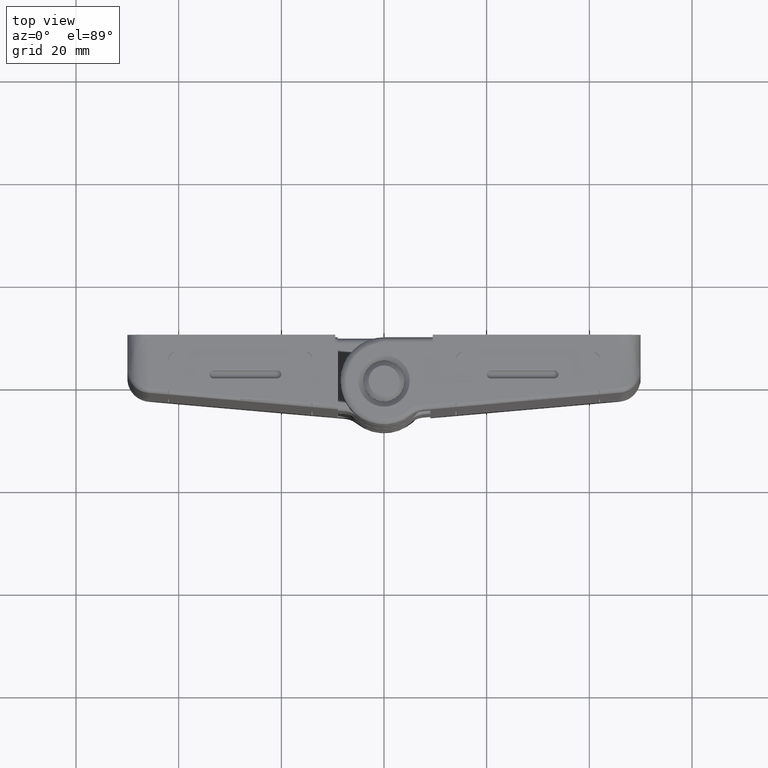
[diagram: clean part render]
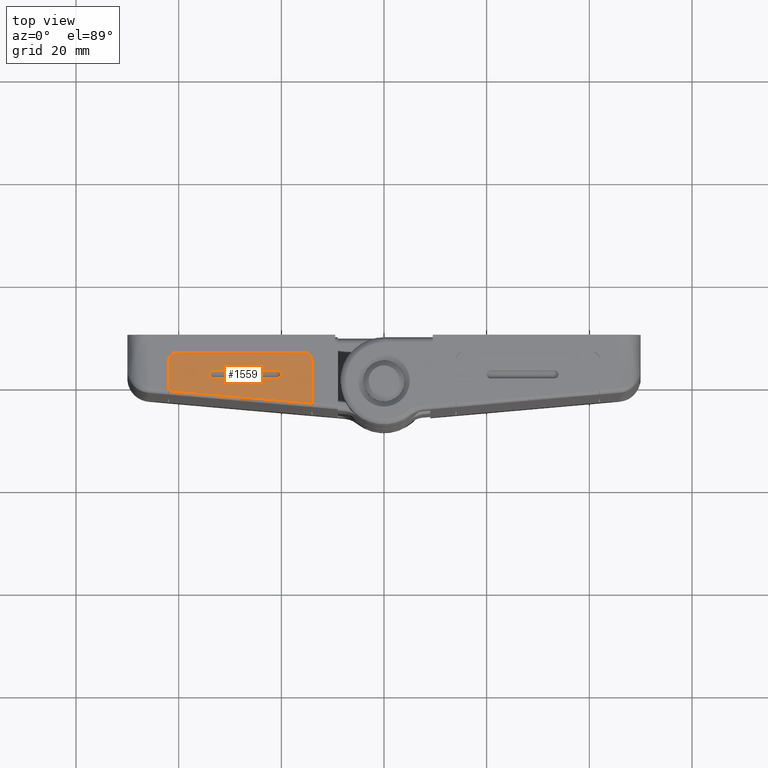
[diagram: same view with one face highlighted and labeled with its STEP entity id]
A machine part, top view. The second image highlights one B-rep face of the part: STEP entity #1559.
In plain terms, the highlighted face is a freeform B-spline surface patch.
Its self-contained STEP definition (entity closure, byte-faithful):
#680=CARTESIAN_POINT('',(-14.050000000000001,4.0,100.0));
#681=VERTEX_POINT('',#680);
#682=CARTESIAN_POINT('',(-15.550000000000001,5.500000000000000,100.0));
#683=VERTEX_POINT('',#682);
#684=CARTESIAN_POINT('',(-14.050000000000001,4.0,100.0));
#685=CARTESIAN_POINT('',(-14.050000000000001,5.500000000000001,100.0));
#686=CARTESIAN_POINT('',(-15.550000000000001,5.500000000000000,100.0));
#694=(BOUNDED_CURVE()B_SPLINE_CURVE(2,(#684,#685,#686),.UNSPECIFIED.,.F.,.U.)CURVE()GEOMETRIC_REPRESENTATION_ITEM()QUASI_UNIFORM_CURVE()RATIONAL_B_SPLINE_CURVE((1.0,0.707106781186548,1.0))REPRESENTATION_ITEM(''));
#695=EDGE_CURVE('',#681,#683,#694,.T.);
#741=CARTESIAN_POINT('',(-40.450000000000003,5.500000000000000,100.0));
#742=VERTEX_POINT('',#741);
#743=CARTESIAN_POINT('',(-41.950000000000003,4.0,100.0));
#744=VERTEX_POINT('',#743);
#745=CARTESIAN_POINT('',(-40.450000000000003,5.500000000000000,100.0));
#746=CARTESIAN_POINT('',(-41.949999999999996,5.500000000000001,100.0));
#747=CARTESIAN_POINT('',(-41.950000000000003,4.0,100.0));
#755=(BOUNDED_CURVE()B_SPLINE_CURVE(2,(#745,#746,#747),.UNSPECIFIED.,.F.,.U.)CURVE()GEOMETRIC_REPRESENTATION_ITEM()QUASI_UNIFORM_CURVE()RATIONAL_B_SPLINE_CURVE((1.0,0.707106781186548,1.0))REPRESENTATION_ITEM(''));
#756=EDGE_CURVE('',#742,#744,#755,.T.);
#926=CARTESIAN_POINT('',(-41.950000000000003,-1.901229080388365,100.0));
#927=VERTEX_POINT('',#926);
#948=CARTESIAN_POINT('',(-14.050000000000001,-4.342163449879365,100.0));
#949=VERTEX_POINT('',#948);
#963=CARTESIAN_POINT('',(-41.950000000000003,-1.901229080388365,100.0));
#964=CARTESIAN_POINT('',(-14.050000000000001,-4.342163449879365,100.0));
#965=QUASI_UNIFORM_CURVE('',1,(#963,#964),.UNSPECIFIED.,.F.,.U.);
#966=EDGE_CURVE('',#927,#949,#965,.T.);
#1311=CARTESIAN_POINT('',(-20.750000039269899,0.500000000000000,100.0));
#1312=VERTEX_POINT('',#1311);
#1313=CARTESIAN_POINT('',(-20.750000039269899,2.0,100.0));
#1314=VERTEX_POINT('',#1313);
#1330=CARTESIAN_POINT('',(-20.750000039269899,1.999999999999999,100.0));
#1331=CARTESIAN_POINT('',(-20.316987319924394,2.000000022672487,100.0));
#1332=CARTESIAN_POINT('',(-20.100480953706651,1.625000011336244,100.0));
#1333=CARTESIAN_POINT('',(-19.883974587488918,1.250000000000000,100.0));
#1334=CARTESIAN_POINT('',(-20.100480953706651,0.874999988663757,100.0));
#1335=CARTESIAN_POINT('',(-20.316987319924394,0.499999977327513,100.0));
#1336=CARTESIAN_POINT('',(-20.750000039269899,0.500000000000001,100.0));
#1344=(BOUNDED_CURVE()B_SPLINE_CURVE(2,(#1330,#1331,#1332,#1333,#1334,#1335,#1336),.UNSPECIFIED.,.F.,.U.)B_SPLINE_CURVE_WITH_KNOTS((3,2,2,3),(0.0,0.333333333333333,0.666666666666667,1.0),.UNSPECIFIED.)CURVE()GEOMETRIC_REPRESENTATION_ITEM()RATIONAL_B_SPLINE_CURVE((1.0,0.866025395057794,1.0,0.866025395057794,1.0,0.866025395057794,1.0))REPRESENTATION_ITEM(''));
#1345=EDGE_CURVE('',#1314,#1312,#1344,.T.);
#1382=CARTESIAN_POINT('',(-33.250000039269899,0.500000000000000,100.0));
#1383=VERTEX_POINT('',#1382);
#1384=CARTESIAN_POINT('',(-33.250000039269899,2.0,100.0));
#1385=VERTEX_POINT('',#1384);
#1401=CARTESIAN_POINT('',(-33.250000039269899,0.500000000000001,100.0));
#1402=CARTESIAN_POINT('',(-34.000000000000007,0.500000039269899,99.999999999999986));
#1403=CARTESIAN_POINT('',(-34.0,1.250000000000000,100.0));
#1404=CARTESIAN_POINT('',(-34.000000000000007,1.999999960730101,99.999999999999986));
#1405=CARTESIAN_POINT('',(-33.250000039269899,1.999999999999999,100.0));
#1413=(BOUNDED_CURVE()B_SPLINE_CURVE(2,(#1401,#1402,#1403,#1404,#1405),.UNSPECIFIED.,.F.,.U.)B_SPLINE_CURVE_WITH_KNOTS((3,2,3),(0.0,0.500000000000000,1.0),.UNSPECIFIED.)CURVE()GEOMETRIC_REPRESENTATION_ITEM()RATIONAL_B_SPLINE_CURVE((1.0,0.707106799698556,1.0,0.707106799698556,1.0))REPRESENTATION_ITEM(''));
#1414=EDGE_CURVE('',#1383,#1385,#1413,.T.);
#1438=CARTESIAN_POINT('',(-20.750000039269899,0.500000000000000,100.0));
#1439=CARTESIAN_POINT('',(-33.250000039269899,0.500000000000000,100.0));
#1440=QUASI_UNIFORM_CURVE('',1,(#1438,#1439),.UNSPECIFIED.,.F.,.U.);
#1441=EDGE_CURVE('',#1312,#1383,#1440,.T.);
#1444=CARTESIAN_POINT('',(-33.250000039269899,2.0,100.0));
#1445=CARTESIAN_POINT('',(-20.750000039269899,2.0,100.0));
#1446=QUASI_UNIFORM_CURVE('',1,(#1444,#1445),.UNSPECIFIED.,.F.,.U.);
#1447=EDGE_CURVE('',#1385,#1314,#1446,.T.);
#1471=CARTESIAN_POINT('',(-41.950000000000003,4.0,100.0));
#1472=CARTESIAN_POINT('',(-41.950000000000003,-1.901229080388365,100.0));
#1473=QUASI_UNIFORM_CURVE('',1,(#1471,#1472),.UNSPECIFIED.,.F.,.U.);
#1474=EDGE_CURVE('',#744,#927,#1473,.T.);
#1489=CARTESIAN_POINT('',(-15.550000000000001,5.500000000000000,100.0));
#1490=CARTESIAN_POINT('',(-40.450000000000003,5.500000000000000,100.0));
#1491=QUASI_UNIFORM_CURVE('',1,(#1489,#1490),.UNSPECIFIED.,.F.,.U.);
#1492=EDGE_CURVE('',#683,#742,#1491,.T.);
#1513=CARTESIAN_POINT('',(-14.050000000000001,-4.342163449879365,100.0));
#1514=CARTESIAN_POINT('',(-14.050000000000001,4.0,100.0));
#1515=QUASI_UNIFORM_CURVE('',1,(#1513,#1514),.UNSPECIFIED.,.F.,.U.);
#1516=EDGE_CURVE('',#949,#681,#1515,.T.);
#1540=CARTESIAN_POINT('',(-43.343605731640103,-4.833779679907194,100.0));
#1541=CARTESIAN_POINT('',(-12.656394268359900,-4.833779679907194,100.0));
#1542=CARTESIAN_POINT('',(-43.343605731640103,5.991616318023627,100.0));
#1543=CARTESIAN_POINT('',(-12.656394268359900,5.991616318023627,100.0));
#1544=B_SPLINE_SURFACE_WITH_KNOTS('',1,1,((#1540,#1542),(#1541,#1543)),.UNSPECIFIED.,.F.,.F.,.U.,(2,2),(2,2),(0.0,30.687211463280200),(0.0,10.825395997930819),.UNSPECIFIED.);
#1545=ORIENTED_EDGE('',*,*,#1492,.T.);
#1546=ORIENTED_EDGE('',*,*,#756,.T.);
#1547=ORIENTED_EDGE('',*,*,#1474,.T.);
#1548=ORIENTED_EDGE('',*,*,#966,.T.);
#1549=ORIENTED_EDGE('',*,*,#1516,.T.);
#1550=ORIENTED_EDGE('',*,*,#695,.T.);
#1551=EDGE_LOOP('',(#1545,#1546,#1547,#1548,#1549,#1550));
#1552=FACE_OUTER_BOUND('',#1551,.T.);
#1553=ORIENTED_EDGE('',*,*,#1441,.T.);
#1554=ORIENTED_EDGE('',*,*,#1414,.T.);
#1555=ORIENTED_EDGE('',*,*,#1447,.T.);
#1556=ORIENTED_EDGE('',*,*,#1345,.T.);
#1557=EDGE_LOOP('',(#1553,#1554,#1555,#1556));
#1558=FACE_BOUND('',#1557,.T.);
#1559=ADVANCED_FACE('',(#1552,#1558),#1544,.T.);